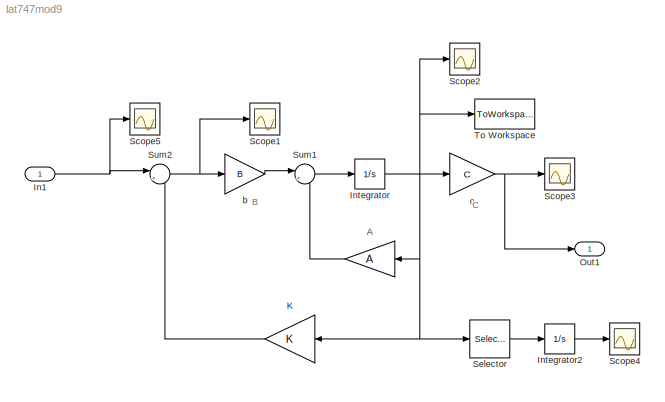
MODEL lat747mod9
KIND model
BLOCK [Gain] A
  Gain = A
  Multiplication = Matrix(K*u)
  SID = 1
BLOCK [Inport] In1
  IconDisplay = Port number
  PortDimensions = 2
  SID = 18
BLOCK [Integrator] Integrator
  InitialCondition = 0%[.0175 0 0 0]'
  Ports = [1, 1]
  SID = 3
BLOCK [Integrator] Integrator2
  InitialCondition = 0%[.0175 0 0 0]'
  Ports = [1, 1]
  SID = 4
BLOCK [Gain] K
  Gain = K
  Multiplication = Matrix(K*u)
  SID = 5
BLOCK [Outport] Out1
  IconDisplay = Port number
  SID = 19
BLOCK [Scope] Scope1
  DataFormat = StructureWithTime
  Floating = off
  NumInputPorts = 1
  Ports = [1]
  SID = 6
  SampleTime = 0
  SaveName = ScopeData1
  ShowLegends = off
  ZoomMode = xonly
BLOCK [Scope] Scope2
  DataFormat = StructureWithTime
  Floating = off
  NumInputPorts = 1
  Ports = [1]
  SID = 7
  SampleTime = 0
  ShowLegends = off
  ZoomMode = xonly
BLOCK [Scope] Scope3
  DataFormat = StructureWithTime
  Floating = off
  NumInputPorts = 1
  Ports = [1]
  SID = 8
  SampleTime = 0
  SaveName = ScopeData2
  ShowLegends = off
  ZoomMode = xonly
BLOCK [Scope] Scope4
  DataFormat = StructureWithTime
  Floating = off
  NumInputPorts = 1
  Ports = [1]
  SID = 9
  SampleTime = 0
  SaveName = ScopeData3
  ShowLegends = off
  ZoomMode = xonly
BLOCK [Scope] Scope5
  DataFormat = StructureWithTime
  Floating = off
  NumInputPorts = 1
  Ports = [1]
  SID = 10
  SampleTime = 0
  SaveName = ScopeData4
  ShowLegends = off
  ZoomMode = xonly
BLOCK [Selector] Selector
  IndexOptions = Index vector (dialog)
  Indices = [2]
  InputPortWidth = 4
  OutputSizes = 1
  Ports = [1, 1]
  SID = 11
BLOCK [Sum] Sum1
  IconShape = round
  Inputs = |++
  Ports = [2, 1]
  SID = 12
BLOCK [Sum] Sum2
  IconShape = round
  Inputs = |+-
  Ports = [2, 1]
  SID = 13
BLOCK [ToWorkspace] To Workspace
  MaxDataPoints = inf
  Ports = [1]
  SID = 14
  SampleTime = -1
  VariableName = simout
BLOCK [Gain] b
  Gain = B
  Multiplication = Matrix(K*u)
  SID = 16
BLOCK [Gain] c
  Gain = C
  Multiplication = Matrix(K*u)
  SID = 17
ANNOTATION (root): B
ANNOTATION (root): C
LINE A:1 -> Sum1:2
NET In1:1 -> Scope5:1, Sum2:1
LINE Integrator2:1 -> Scope4:1
NET Integrator:1 -> A:1, K:1, Scope2:1, Selector:1, To Workspace:1, c:1
LINE K:1 -> Sum2:2
LINE Selector:1 -> Integrator2:1
LINE Sum1:1 -> Integrator:1
NET Sum2:1 -> Scope1:1, b:1
LINE b:1 -> Sum1:1
NET c:1 -> Out1:1, Scope3:1
note: NET lines group one-source signal fan-out (src -> all destinations, sorted); 1:1 wires keep LINE
